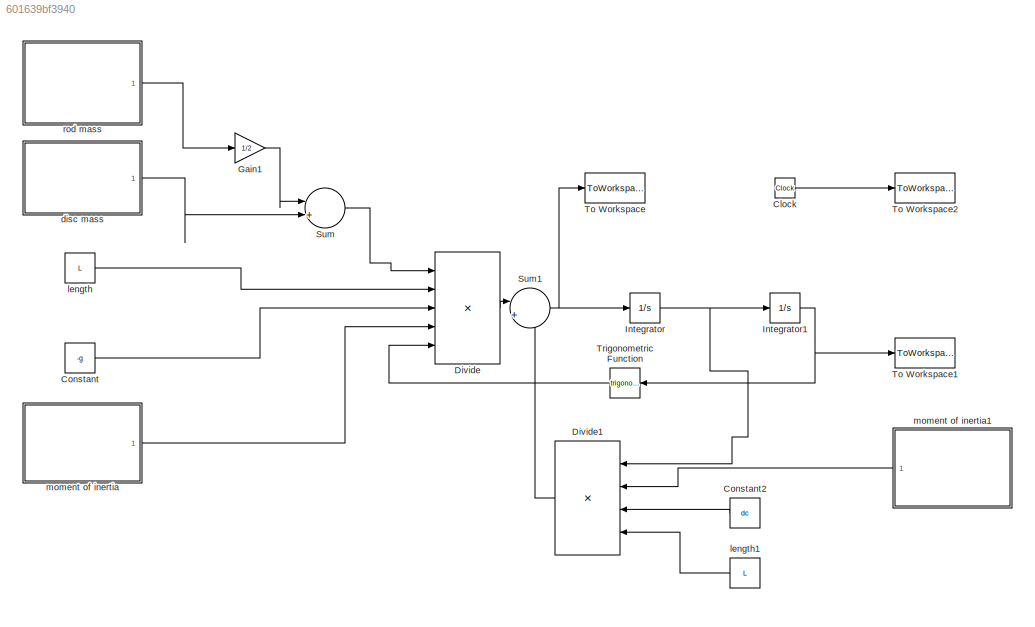
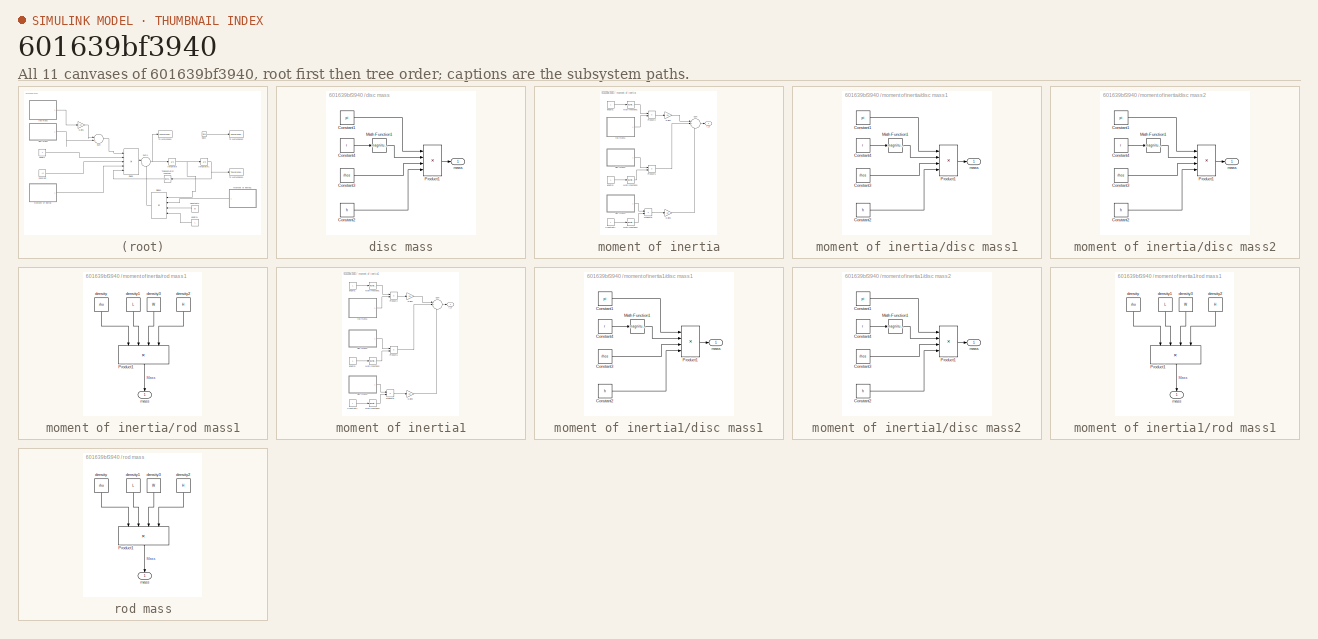
[diagram: thumbnail index - all 11 canvases of the model, root first then tree order]
MODEL slx_601639bf3940
KIND model
CONFIG AbsTol = auto
CONFIG FixedStep = auto
CONFIG MaxStep = auto
CONFIG MinStep = auto
CONFIG RelTol = 1e-3
CONFIG SampleTimeConstraint = Unconstrained
CONFIG Solver = VariableStepAuto
CONFIG SolverMode = Auto
CONFIG SolverName = VariableStepAuto
CONFIG StartTime = 0.0
CONFIG StopTime = 10.0
BLOCK [Clock] Clock
BLOCK [Constant] Constant
  Value = -g
BLOCK [Constant] Constant2
  Value = dc
BLOCK [Product] Divide
  InputSameDT = off
  Inputs = ***/*
  OutDataTypeStr = Inherit: Inherit via internal rule
  Ports = [5, 1]
  RndMeth = Floor
  SaturateOnIntegerOverflow = off
BLOCK [Product] Divide1
  InputSameDT = off
  Inputs = */**
  OutDataTypeStr = Inherit: Inherit via internal rule
  Ports = [4, 1]
  RndMeth = Floor
  SaturateOnIntegerOverflow = off
BLOCK [Gain] Gain1
  Gain = 1/2
  OutDataTypeStr = Inherit: Inherit via internal rule
  ParamDataTypeStr = Inherit: Inherit via internal rule
  SaturateOnIntegerOverflow = off
BLOCK [Integrator] Integrator
  InitialCondition = v0
  Ports = [1, 1]
BLOCK [Integrator] Integrator1
  InitialCondition = theta0
  Ports = [1, 1]
BLOCK [Sum] Sum
  IconShape = round
  InputSameDT = off
  Inputs = |++
  OutDataTypeStr = Inherit: Inherit via internal rule
  Ports = [2, 1]
  SaturateOnIntegerOverflow = off
BLOCK [Sum] Sum1
  IconShape = round
  InputSameDT = off
  Inputs = |+-
  OutDataTypeStr = Inherit: Inherit via internal rule
  Ports = [2, 1]
  SaturateOnIntegerOverflow = off
BLOCK [ToWorkspace] To Workspace
  FixptAsFi = on
  MaxDataPoints = inf
  Ports = [1]
  SampleTime = -1
  Save2DSignal = 3-D array (concatenate along third dimension)
  SaveFormat = Timeseries
  VariableName = theta2
BLOCK [ToWorkspace] To Workspace1
  FixptAsFi = on
  MaxDataPoints = inf
  Ports = [1]
  SampleTime = -1
  Save2DSignal = 3-D array (concatenate along third dimension)
  SaveFormat = Timeseries
  VariableName = theta
BLOCK [ToWorkspace] To Workspace2
  FixptAsFi = on
  MaxDataPoints = inf
  Ports = [1]
  SampleTime = -1
  Save2DSignal = 3-D array (concatenate along third dimension)
  SaveFormat = Timeseries
  VariableName = time
BLOCK [Trigonometry] Trigonometric Function
  Ports = [1, 1]
BLOCK [SubSystem] disc mass
  Ports = [0, 1]
  RequestExecContextInheritance = off
  Variant = off
BLOCK [Constant] disc mass/Constant1
  Value = pi
BLOCK [Constant] disc mass/Constant2
  Value = h
BLOCK [Constant] disc mass/Constant3
  Value = rhos
BLOCK [Constant] disc mass/Constant4
  Value = r
BLOCK [Math] disc mass/Math Function1
  Operator = magnitude^2
  Ports = [1, 1]
BLOCK [Product] disc mass/Product1
  InputSameDT = off
  Inputs = 4
  OutDataTypeStr = Inherit: Inherit via internal rule
  Ports = [4, 1]
  RndMeth = Floor
  SaturateOnIntegerOverflow = off
BLOCK [Outport] disc mass/mass
  IconDisplay = Port number
BLOCK [Constant] length
  Value = L
BLOCK [Constant] length1
  Value = L
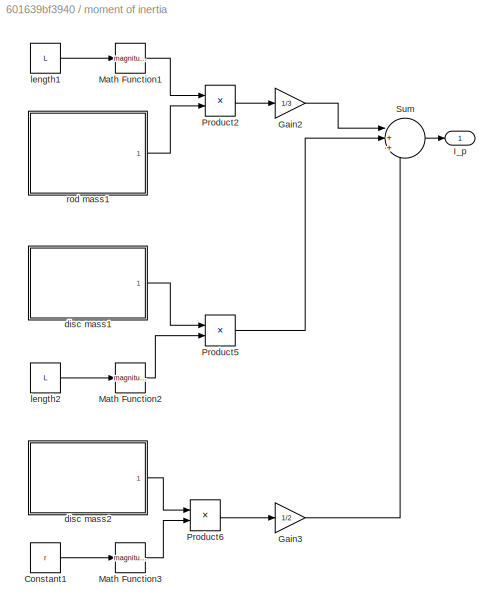
BLOCK [SubSystem] moment of inertia
  Ports = [0, 1]
  RequestExecContextInheritance = off
  Variant = off
BLOCK [Constant] moment of inertia/Constant1
  Value = r
BLOCK [Gain] moment of inertia/Gain2
  Gain = 1/3
  OutDataTypeStr = Inherit: Inherit via internal rule
  ParamDataTypeStr = Inherit: Inherit via internal rule
  SaturateOnIntegerOverflow = off
BLOCK [Gain] moment of inertia/Gain3
  Gain = 1/2
  OutDataTypeStr = Inherit: Inherit via internal rule
  ParamDataTypeStr = Inherit: Inherit via internal rule
  SaturateOnIntegerOverflow = off
BLOCK [Outport] moment of inertia/I_p 
  IconDisplay = Port number
BLOCK [Math] moment of inertia/Math Function1
  Operator = magnitude^2
  Ports = [1, 1]
BLOCK [Math] moment of inertia/Math Function2
  Operator = magnitude^2
  Ports = [1, 1]
BLOCK [Math] moment of inertia/Math Function3
  Operator = magnitude^2
  Ports = [1, 1]
BLOCK [Product] moment of inertia/Product2
  InputSameDT = off
  OutDataTypeStr = Inherit: Inherit via internal rule
  Ports = [2, 1]
  RndMeth = Floor
  SaturateOnIntegerOverflow = off
BLOCK [Product] moment of inertia/Product5
  InputSameDT = off
  OutDataTypeStr = Inherit: Inherit via internal rule
  Ports = [2, 1]
  RndMeth = Floor
  SaturateOnIntegerOverflow = off
BLOCK [Product] moment of inertia/Product6
  InputSameDT = off
  OutDataTypeStr = Inherit: Inherit via internal rule
  Ports = [2, 1]
  RndMeth = Floor
  SaturateOnIntegerOverflow = off
BLOCK [Sum] moment of inertia/Sum
  IconShape = round
  InputSameDT = off
  Inputs = |+++
  OutDataTypeStr = Inherit: Inherit via internal rule
  Ports = [3, 1]
  SaturateOnIntegerOverflow = off
BLOCK [SubSystem] moment of inertia/disc mass1
  Ports = [0, 1]
  RequestExecContextInheritance = off
  Variant = off
BLOCK [Constant] moment of inertia/disc mass1/Constant1
  Value = pi
BLOCK [Constant] moment of inertia/disc mass1/Constant2
  Value = h
BLOCK [Constant] moment of inertia/disc mass1/Constant3
  Value = rhos
BLOCK [Constant] moment of inertia/disc mass1/Constant4
  Value = r
BLOCK [Math] moment of inertia/disc mass1/Math Function1
  Operator = magnitude^2
  Ports = [1, 1]
BLOCK [Product] moment of inertia/disc mass1/Product1
  InputSameDT = off
  Inputs = 4
  OutDataTypeStr = Inherit: Inherit via internal rule
  Ports = [4, 1]
  RndMeth = Floor
  SaturateOnIntegerOverflow = off
BLOCK [Outport] moment of inertia/disc mass1/mass
  IconDisplay = Port number
BLOCK [SubSystem] moment of inertia/disc mass2
  Ports = [0, 1]
  RequestExecContextInheritance = off
  Variant = off
BLOCK [Constant] moment of inertia/disc mass2/Constant1
  Value = pi
BLOCK [Constant] moment of inertia/disc mass2/Constant2
  Value = h
BLOCK [Constant] moment of inertia/disc mass2/Constant3
  Value = rhos
BLOCK [Constant] moment of inertia/disc mass2/Constant4
  Value = r
BLOCK [Math] moment of inertia/disc mass2/Math Function1
  Operator = magnitude^2
  Ports = [1, 1]
BLOCK [Product] moment of inertia/disc mass2/Product1
  InputSameDT = off
  Inputs = 4
  OutDataTypeStr = Inherit: Inherit via internal rule
  Ports = [4, 1]
  RndMeth = Floor
  SaturateOnIntegerOverflow = off
BLOCK [Outport] moment of inertia/disc mass2/mass
  IconDisplay = Port number
BLOCK [Constant] moment of inertia/length1
  Value = L
BLOCK [Constant] moment of inertia/length2
  Value = L
BLOCK [SubSystem] moment of inertia/rod mass1
  Ports = [0, 1]
  RequestExecContextInheritance = off
  Variant = off
BLOCK [Product] moment of inertia/rod mass1/Product1
  InputSameDT = off
  Inputs = 4
  OutDataTypeStr = Inherit: Inherit via internal rule
  Ports = [4, 1]
  RndMeth = Floor
  SaturateOnIntegerOverflow = off
BLOCK [Constant] moment of inertia/rod mass1/density
  Value = rho
BLOCK [Constant] moment of inertia/rod mass1/density1
  Value = L
BLOCK [Constant] moment of inertia/rod mass1/density2
  Value = H
BLOCK [Constant] moment of inertia/rod mass1/density3
  Value = W
BLOCK [Outport] moment of inertia/rod mass1/mass 
  IconDisplay = Port number
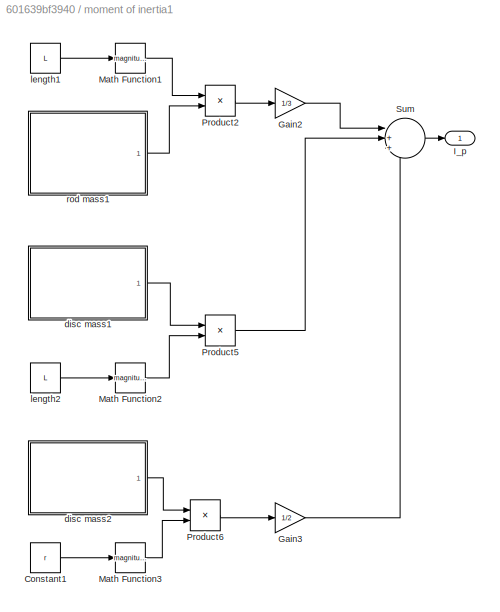
BLOCK [SubSystem] moment of inertia1
  Ports = [0, 1]
  RequestExecContextInheritance = off
  Variant = off
BLOCK [Constant] moment of inertia1/Constant1
  Value = r
BLOCK [Gain] moment of inertia1/Gain2
  Gain = 1/3
  OutDataTypeStr = Inherit: Inherit via internal rule
  ParamDataTypeStr = Inherit: Inherit via internal rule
  SaturateOnIntegerOverflow = off
BLOCK [Gain] moment of inertia1/Gain3
  Gain = 1/2
  OutDataTypeStr = Inherit: Inherit via internal rule
  ParamDataTypeStr = Inherit: Inherit via internal rule
  SaturateOnIntegerOverflow = off
BLOCK [Outport] moment of inertia1/I_p 
  IconDisplay = Port number
BLOCK [Math] moment of inertia1/Math Function1
  Operator = magnitude^2
  Ports = [1, 1]
BLOCK [Math] moment of inertia1/Math Function2
  Operator = magnitude^2
  Ports = [1, 1]
BLOCK [Math] moment of inertia1/Math Function3
  Operator = magnitude^2
  Ports = [1, 1]
BLOCK [Product] moment of inertia1/Product2
  InputSameDT = off
  OutDataTypeStr = Inherit: Inherit via internal rule
  Ports = [2, 1]
  RndMeth = Floor
  SaturateOnIntegerOverflow = off
BLOCK [Product] moment of inertia1/Product5
  InputSameDT = off
  OutDataTypeStr = Inherit: Inherit via internal rule
  Ports = [2, 1]
  RndMeth = Floor
  SaturateOnIntegerOverflow = off
BLOCK [Product] moment of inertia1/Product6
  InputSameDT = off
  OutDataTypeStr = Inherit: Inherit via internal rule
  Ports = [2, 1]
  RndMeth = Floor
  SaturateOnIntegerOverflow = off
BLOCK [Sum] moment of inertia1/Sum
  IconShape = round
  InputSameDT = off
  Inputs = |+++
  OutDataTypeStr = Inherit: Inherit via internal rule
  Ports = [3, 1]
  SaturateOnIntegerOverflow = off
BLOCK [SubSystem] moment of inertia1/disc mass1
  Ports = [0, 1]
  RequestExecContextInheritance = off
  Variant = off
BLOCK [Constant] moment of inertia1/disc mass1/Constant1
  Value = pi
BLOCK [Constant] moment of inertia1/disc mass1/Constant2
  Value = h
BLOCK [Constant] moment of inertia1/disc mass1/Constant3
  Value = rhos
BLOCK [Constant] moment of inertia1/disc mass1/Constant4
  Value = r
BLOCK [Math] moment of inertia1/disc mass1/Math Function1
  Operator = magnitude^2
  Ports = [1, 1]
BLOCK [Product] moment of inertia1/disc mass1/Product1
  InputSameDT = off
  Inputs = 4
  OutDataTypeStr = Inherit: Inherit via internal rule
  Ports = [4, 1]
  RndMeth = Floor
  SaturateOnIntegerOverflow = off
BLOCK [Outport] moment of inertia1/disc mass1/mass
  IconDisplay = Port number
BLOCK [SubSystem] moment of inertia1/disc mass2
  Ports = [0, 1]
  RequestExecContextInheritance = off
  Variant = off
BLOCK [Constant] moment of inertia1/disc mass2/Constant1
  Value = pi
BLOCK [Constant] moment of inertia1/disc mass2/Constant2
  Value = h
BLOCK [Constant] moment of inertia1/disc mass2/Constant3
  Value = rhos
BLOCK [Constant] moment of inertia1/disc mass2/Constant4
  Value = r
BLOCK [Math] moment of inertia1/disc mass2/Math Function1
  Operator = magnitude^2
  Ports = [1, 1]
BLOCK [Product] moment of inertia1/disc mass2/Product1
  InputSameDT = off
  Inputs = 4
  OutDataTypeStr = Inherit: Inherit via internal rule
  Ports = [4, 1]
  RndMeth = Floor
  SaturateOnIntegerOverflow = off
BLOCK [Outport] moment of inertia1/disc mass2/mass
  IconDisplay = Port number
BLOCK [Constant] moment of inertia1/length1
  Value = L
BLOCK [Constant] moment of inertia1/length2
  Value = L
BLOCK [SubSystem] moment of inertia1/rod mass1
  Ports = [0, 1]
  RequestExecContextInheritance = off
  Variant = off
BLOCK [Product] moment of inertia1/rod mass1/Product1
  InputSameDT = off
  Inputs = 4
  OutDataTypeStr = Inherit: Inherit via internal rule
  Ports = [4, 1]
  RndMeth = Floor
  SaturateOnIntegerOverflow = off
BLOCK [Constant] moment of inertia1/rod mass1/density
  Value = rho
BLOCK [Constant] moment of inertia1/rod mass1/density1
  Value = L
BLOCK [Constant] moment of inertia1/rod mass1/density2
  Value = H
BLOCK [Constant] moment of inertia1/rod mass1/density3
  Value = W
BLOCK [Outport] moment of inertia1/rod mass1/mass 
  IconDisplay = Port number
BLOCK [SubSystem] rod mass
  Ports = [0, 1]
  RequestExecContextInheritance = off
  Variant = off
BLOCK [Product] rod mass/Product1
  InputSameDT = off
  Inputs = 4
  OutDataTypeStr = Inherit: Inherit via internal rule
  Ports = [4, 1]
  RndMeth = Floor
  SaturateOnIntegerOverflow = off
BLOCK [Constant] rod mass/density
  Value = rho
BLOCK [Constant] rod mass/density1
  Value = L
BLOCK [Constant] rod mass/density2
  Value = H
BLOCK [Constant] rod mass/density3
  Value = W
BLOCK [Outport] rod mass/mass 
  IconDisplay = Port number
LINE Clock:1 -> To Workspace2:1
LINE Constant2:1 -> Divide1:3
LINE Constant:1 -> Divide:3
LINE Divide1:1 -> Sum1:2
LINE Divide:1 -> Sum1:1
LINE Gain1:1 -> Sum:1
NET Integrator1:1 -> To Workspace1:1, Trigonometric Function:1
NET Integrator:1 -> Divide1:1, Integrator1:1
NET Sum1:1 -> Integrator:1, To Workspace:1
LINE Sum:1 -> Divide:1
LINE Trigonometric Function:1 -> Divide:5
LINE disc mass/Constant1:1 -> disc mass/Product1:1
LINE disc mass/Constant2:1 -> disc mass/Product1:4
LINE disc mass/Constant3:1 -> disc mass/Product1:3
LINE disc mass/Constant4:1 -> disc mass/Math Function1:1
LINE disc mass/Math Function1:1 -> disc mass/Product1:2
LINE disc mass/Product1:1 -> disc mass/mass:1
LINE disc mass:1 -> Sum:2
LINE length1:1 -> Divide1:4
LINE length:1 -> Divide:2
LINE moment of inertia/Constant1:1 -> moment of inertia/Math Function3:1
LINE moment of inertia/Gain2:1 -> moment of inertia/Sum:1
LINE moment of inertia/Gain3:1 -> moment of inertia/Sum:3
LINE moment of inertia/Math Function1:1 -> moment of inertia/Product2:1
LINE moment of inertia/Math Function2:1 -> moment of inertia/Product5:2
LINE moment of inertia/Math Function3:1 -> moment of inertia/Product6:2
LINE moment of inertia/Product2:1 -> moment of inertia/Gain2:1
LINE moment of inertia/Product5:1 -> moment of inertia/Sum:2
LINE moment of inertia/Product6:1 -> moment of inertia/Gain3:1
LINE moment of inertia/Sum:1 -> moment of inertia/I_p :1
LINE moment of inertia/disc mass1/Constant1:1 -> moment of inertia/disc mass1/Product1:1
LINE moment of inertia/disc mass1/Constant2:1 -> moment of inertia/disc mass1/Product1:4
LINE moment of inertia/disc mass1/Constant3:1 -> moment of inertia/disc mass1/Product1:3
LINE moment of inertia/disc mass1/Constant4:1 -> moment of inertia/disc mass1/Math Function1:1
LINE moment of inertia/disc mass1/Math Function1:1 -> moment of inertia/disc mass1/Product1:2
LINE moment of inertia/disc mass1/Product1:1 -> moment of inertia/disc mass1/mass:1
LINE moment of inertia/disc mass1:1 -> moment of inertia/Product5:1
LINE moment of inertia/disc mass2/Constant1:1 -> moment of inertia/disc mass2/Product1:1
LINE moment of inertia/disc mass2/Constant2:1 -> moment of inertia/disc mass2/Product1:4
LINE moment of inertia/disc mass2/Constant3:1 -> moment of inertia/disc mass2/Product1:3
LINE moment of inertia/disc mass2/Constant4:1 -> moment of inertia/disc mass2/Math Function1:1
LINE moment of inertia/disc mass2/Math Function1:1 -> moment of inertia/disc mass2/Product1:2
LINE moment of inertia/disc mass2/Product1:1 -> moment of inertia/disc mass2/mass:1
LINE moment of inertia/disc mass2:1 -> moment of inertia/Product6:1
LINE moment of inertia/length1:1 -> moment of inertia/Math Function1:1
LINE moment of inertia/length2:1 -> moment of inertia/Math Function2:1
LINE moment of inertia/rod mass1/Product1:1 -> moment of inertia/rod mass1/mass :1
LINE moment of inertia/rod mass1/density1:1 -> moment of inertia/rod mass1/Product1:2
LINE moment of inertia/rod mass1/density2:1 -> moment of inertia/rod mass1/Product1:4
LINE moment of inertia/rod mass1/density3:1 -> moment of inertia/rod mass1/Product1:3
LINE moment of inertia/rod mass1/density:1 -> moment of inertia/rod mass1/Product1:1
LINE moment of inertia/rod mass1:1 -> moment of inertia/Product2:2
LINE moment of inertia1/Constant1:1 -> moment of inertia1/Math Function3:1
LINE moment of inertia1/Gain2:1 -> moment of inertia1/Sum:1
LINE moment of inertia1/Gain3:1 -> moment of inertia1/Sum:3
LINE moment of inertia1/Math Function1:1 -> moment of inertia1/Product2:1
LINE moment of inertia1/Math Function2:1 -> moment of inertia1/Product5:2
LINE moment of inertia1/Math Function3:1 -> moment of inertia1/Product6:2
LINE moment of inertia1/Product2:1 -> moment of inertia1/Gain2:1
LINE moment of inertia1/Product5:1 -> moment of inertia1/Sum:2
LINE moment of inertia1/Product6:1 -> moment of inertia1/Gain3:1
LINE moment of inertia1/Sum:1 -> moment of inertia1/I_p :1
LINE moment of inertia1/disc mass1/Constant1:1 -> moment of inertia1/disc mass1/Product1:1
LINE moment of inertia1/disc mass1/Constant2:1 -> moment of inertia1/disc mass1/Product1:4
LINE moment of inertia1/disc mass1/Constant3:1 -> moment of inertia1/disc mass1/Product1:3
LINE moment of inertia1/disc mass1/Constant4:1 -> moment of inertia1/disc mass1/Math Function1:1
LINE moment of inertia1/disc mass1/Math Function1:1 -> moment of inertia1/disc mass1/Product1:2
LINE moment of inertia1/disc mass1/Product1:1 -> moment of inertia1/disc mass1/mass:1
LINE moment of inertia1/disc mass1:1 -> moment of inertia1/Product5:1
LINE moment of inertia1/disc mass2/Constant1:1 -> moment of inertia1/disc mass2/Product1:1
LINE moment of inertia1/disc mass2/Constant2:1 -> moment of inertia1/disc mass2/Product1:4
LINE moment of inertia1/disc mass2/Constant3:1 -> moment of inertia1/disc mass2/Product1:3
LINE moment of inertia1/disc mass2/Constant4:1 -> moment of inertia1/disc mass2/Math Function1:1
LINE moment of inertia1/disc mass2/Math Function1:1 -> moment of inertia1/disc mass2/Product1:2
LINE moment of inertia1/disc mass2/Product1:1 -> moment of inertia1/disc mass2/mass:1
LINE moment of inertia1/disc mass2:1 -> moment of inertia1/Product6:1
LINE moment of inertia1/length1:1 -> moment of inertia1/Math Function1:1
LINE moment of inertia1/length2:1 -> moment of inertia1/Math Function2:1
LINE moment of inertia1/rod mass1/Product1:1 -> moment of inertia1/rod mass1/mass :1
LINE moment of inertia1/rod mass1/density1:1 -> moment of inertia1/rod mass1/Product1:2
LINE moment of inertia1/rod mass1/density2:1 -> moment of inertia1/rod mass1/Product1:4
LINE moment of inertia1/rod mass1/density3:1 -> moment of inertia1/rod mass1/Product1:3
LINE moment of inertia1/rod mass1/density:1 -> moment of inertia1/rod mass1/Product1:1
LINE moment of inertia1/rod mass1:1 -> moment of inertia1/Product2:2
LINE moment of inertia1:1 -> Divide1:2
LINE moment of inertia:1 -> Divide:4
LINE rod mass/Product1:1 -> rod mass/mass :1
LINE rod mass/density1:1 -> rod mass/Product1:2
LINE rod mass/density2:1 -> rod mass/Product1:4
LINE rod mass/density3:1 -> rod mass/Product1:3
LINE rod mass/density:1 -> rod mass/Product1:1
LINE rod mass:1 -> Gain1:1
note: NET lines group one-source signal fan-out (src -> all destinations, sorted); 1:1 wires keep LINE
